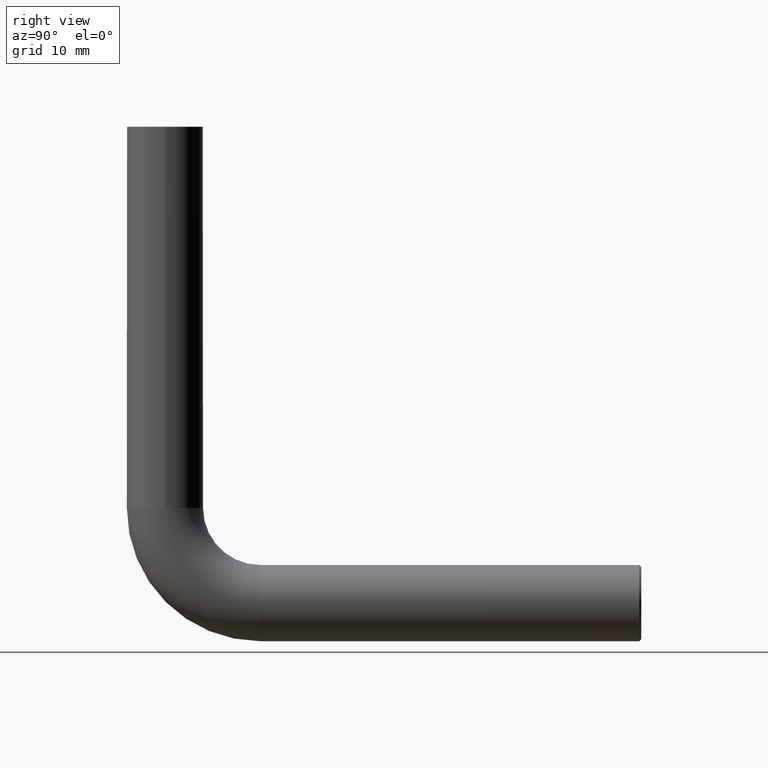
[diagram: clean part render]
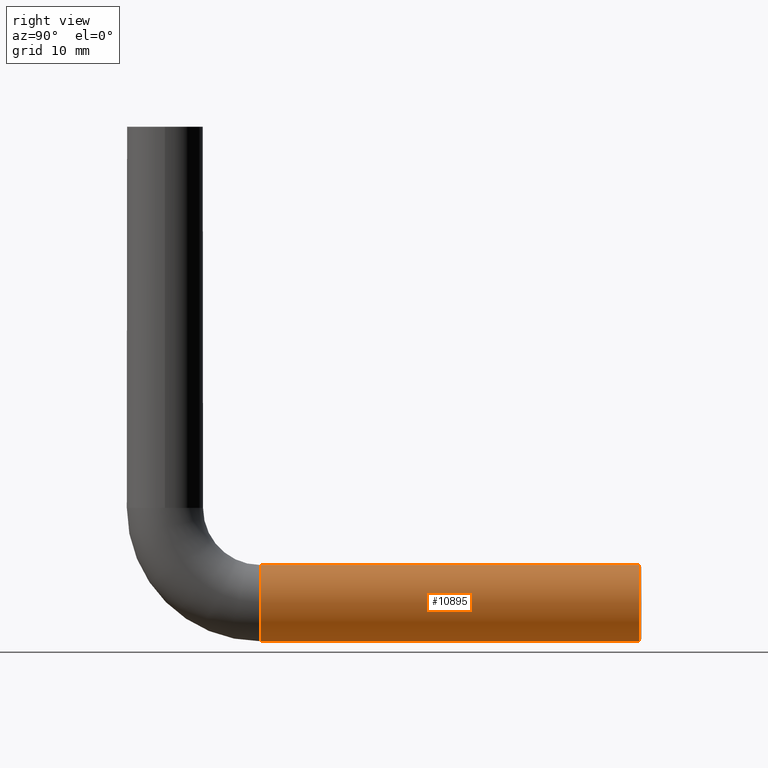
[diagram: same view with one face highlighted and labeled with its STEP entity id]
A machine part, right view. The second image highlights one B-rep face of the part: STEP entity #10895.
In plain terms, the highlighted cylindrical surface (partial cylindrical patch) has radius 6 mm, axis along (0, 1, 0).
Its self-contained STEP definition (entity closure, byte-faithful):
#148 = DIRECTION ( 'NONE',  ( -0.000000000000000000, -1.000000000000000000, -0.000000000000000000 ) ) ;
#335 = CARTESIAN_POINT ( 'NONE',  ( 7.347880794884114806E-16, 15.00000000000000000, -80.99999999999998579 ) ) ;
#486 = DIRECTION ( 'NONE',  ( 0.000000000000000000, 1.000000000000000000, 2.312964634635742957E-16 ) ) ;
#1199 = DIRECTION ( 'NONE',  ( 0.000000000000000000, 0.000000000000000000, -1.000000000000000000 ) ) ;
#1667 = CARTESIAN_POINT ( 'NONE',  ( 0.000000000000000000, 14.99999999999999822, -68.99999999999997158 ) ) ;
#2040 = VECTOR ( 'NONE', #7826, 1000.000000000000000 ) ;
#2062 = CIRCLE ( 'NONE', #5744, 6.000000000000005329 ) ;
#2152 = CYLINDRICAL_SURFACE ( 'NONE', #2840, 6.000000000000005329 ) ;
#2486 = VERTEX_POINT ( 'NONE', #335 ) ;
#2840 = AXIS2_PLACEMENT_3D ( 'NONE', #10799, #486, #11060 ) ;
#3496 = EDGE_CURVE ( 'NONE', #2486, #4744, #6722, .T. ) ;
#3508 = ORIENTED_EDGE ( 'NONE', *, *, #8990, .F. ) ;
#3932 = CARTESIAN_POINT ( 'NONE',  ( 0.000000000000000000, 74.69999999999998863, -74.99999999999997158 ) ) ;
#4245 = VECTOR ( 'NONE', #5460, 1000.000000000000000 ) ;
#4744 = VERTEX_POINT ( 'NONE', #9479 ) ;
#4763 = ORIENTED_EDGE ( 'NONE', *, *, #7564, .T. ) ;
#4833 = CARTESIAN_POINT ( 'NONE',  ( 0.000000000000000000, 74.69999999999998863, -68.99999999999995737 ) ) ;
#5417 = CARTESIAN_POINT ( 'NONE',  ( 0.000000000000000000, 15.00000000000000000, -74.99999999999998579 ) ) ;
#5444 = AXIS2_PLACEMENT_3D ( 'NONE', #5417, #11039, #11284 ) ;
#5460 = DIRECTION ( 'NONE',  ( 0.000000000000000000, 1.000000000000000000, 2.312964634635742957E-16 ) ) ;
#5606 = CIRCLE ( 'NONE', #5444, 6.000000000000000888 ) ;
#5744 = AXIS2_PLACEMENT_3D ( 'NONE', #3932, #148, #1199 ) ;
#6546 = CARTESIAN_POINT ( 'NONE',  ( 0.000000000000000000, 15.00000000000000000, -68.99999999999997158 ) ) ;
#6722 = LINE ( 'NONE', #10769, #2040 ) ;
#7210 = EDGE_LOOP ( 'NONE', ( #3508, #8406, #4763, #9997 ) ) ;
#7339 = LINE ( 'NONE', #1667, #4245 ) ;
#7564 = EDGE_CURVE ( 'NONE', #4744, #9224, #2062, .T. ) ;
#7826 = DIRECTION ( 'NONE',  ( 0.000000000000000000, 1.000000000000000000, 2.312964634635742957E-16 ) ) ;
#8160 = FACE_OUTER_BOUND ( 'NONE', #7210, .T. ) ;
#8406 = ORIENTED_EDGE ( 'NONE', *, *, #3496, .T. ) ;
#8990 = EDGE_CURVE ( 'NONE', #2486, #10622, #5606, .T. ) ;
#9224 = VERTEX_POINT ( 'NONE', #4833 ) ;
#9479 = CARTESIAN_POINT ( 'NONE',  ( 7.347880794884114806E-16, 74.69999999999998863, -80.99999999999997158 ) ) ;
#9997 = ORIENTED_EDGE ( 'NONE', *, *, #10152, .F. ) ;
#10152 = EDGE_CURVE ( 'NONE', #10622, #9224, #7339, .T. ) ;
#10622 = VERTEX_POINT ( 'NONE', #6546 ) ;
#10769 = CARTESIAN_POINT ( 'NONE',  ( 7.347880794884120722E-16, 15.00000000000000178, -80.99999999999998579 ) ) ;
#10799 = CARTESIAN_POINT ( 'NONE',  ( 0.000000000000000000, 15.00000000000000000, -74.99999999999998579 ) ) ;
#10895 = ADVANCED_FACE ( 'NONE', ( #8160 ), #2152, .T. ) ;
#11039 = DIRECTION ( 'NONE',  ( 0.000000000000000000, -1.000000000000000000, 6.123233995736766036E-17 ) ) ;
#11060 = DIRECTION ( 'NONE',  ( 0.000000000000000000, -2.891205793294675861E-16, 1.000000000000000000 ) ) ;
#11284 = DIRECTION ( 'NONE',  ( 1.000000000000000000, 0.000000000000000000, 0.000000000000000000 ) ) ;